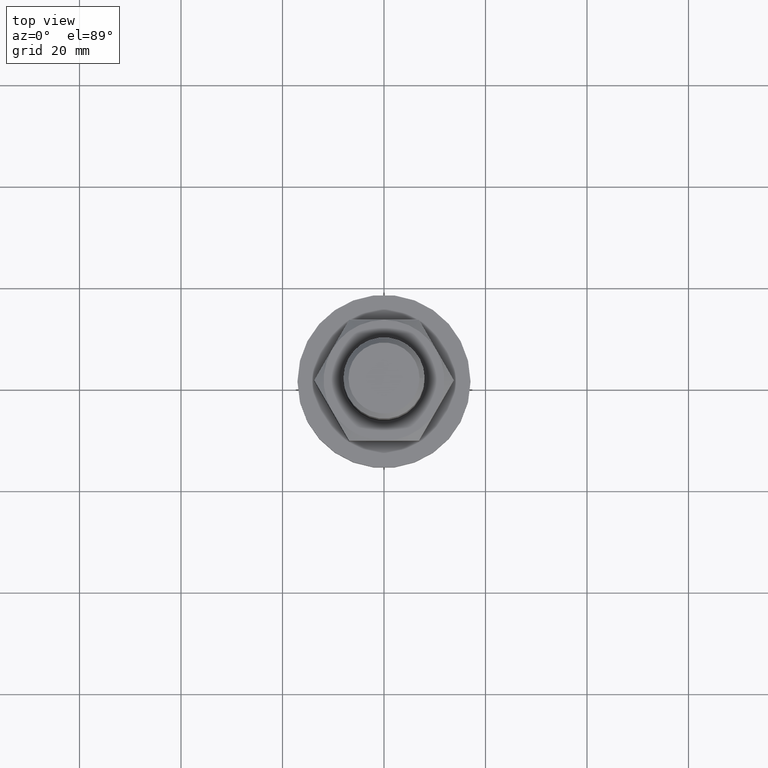
[diagram: clean part render]
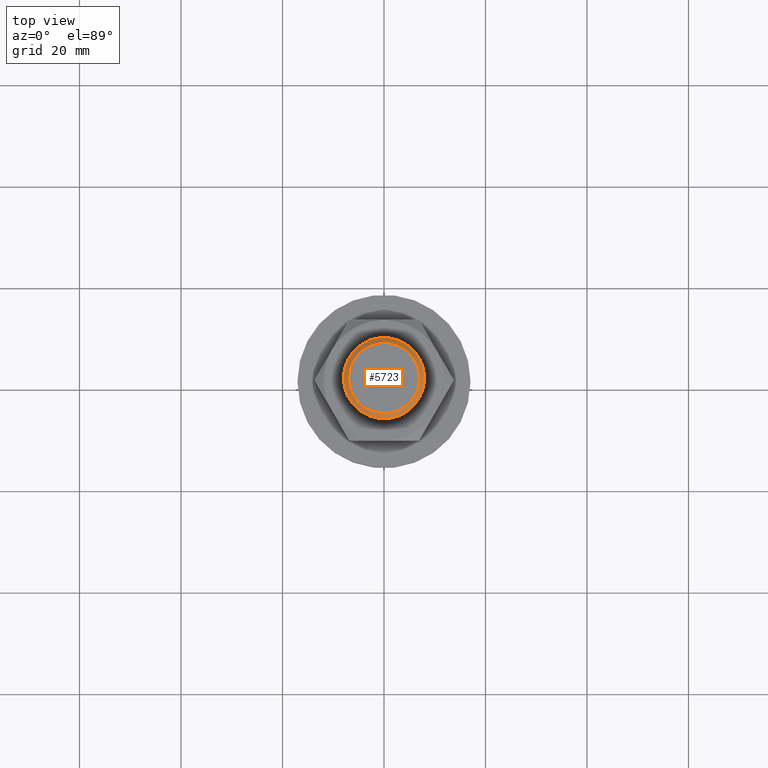
[diagram: same view with one face highlighted and labeled with its STEP entity id]
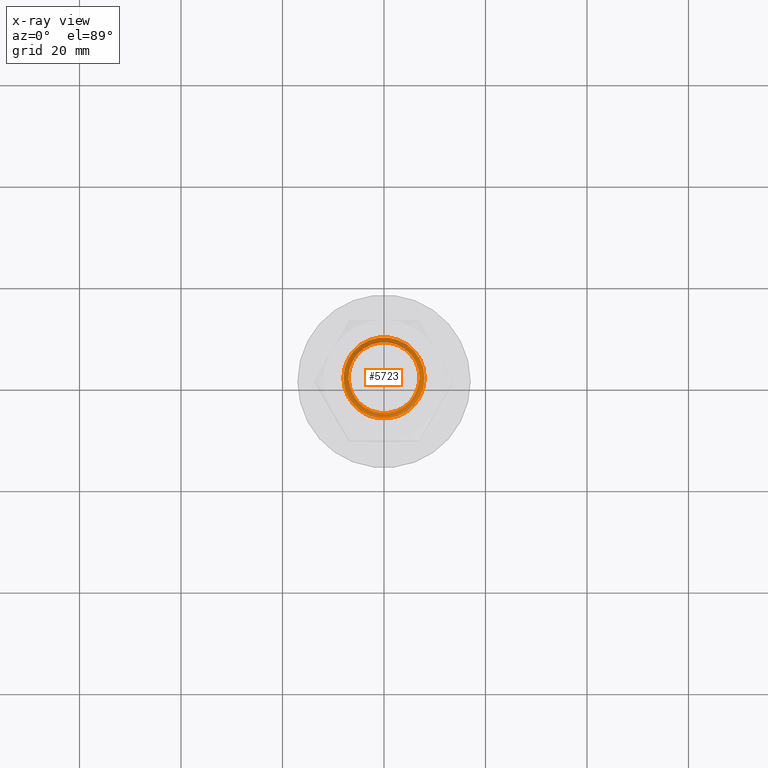
[diagram: x-ray of the same camera — body ghosted, the highlighted face saturated]
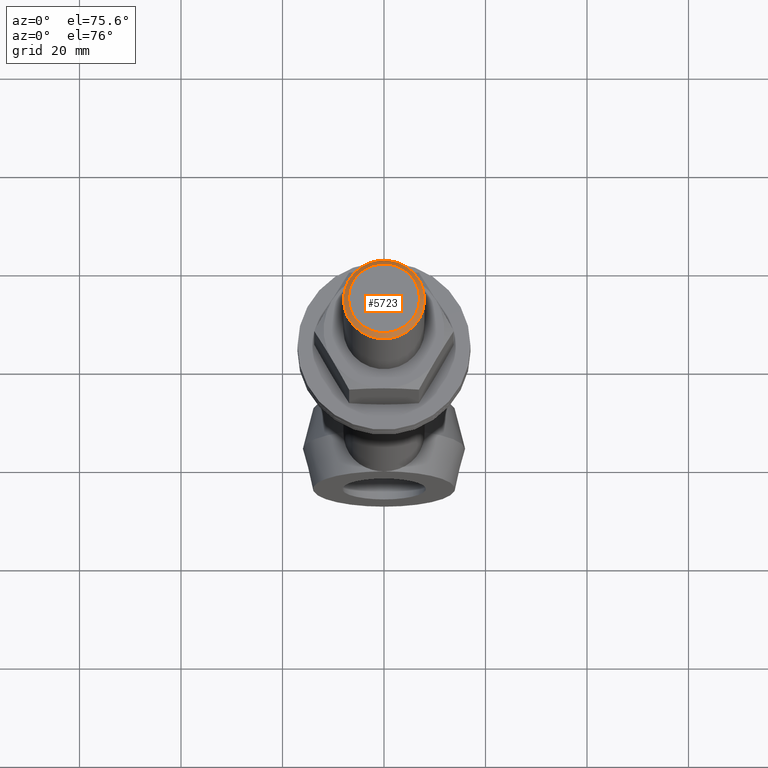
[diagram: same view with one face highlighted and labeled with its STEP entity id]
A machine part, top view. The second image highlights one B-rep face of the part: STEP entity #5723.
The next image is the same camera in x-ray: the body ghosted, the highlighted face saturated — about 0% of this face is hidden behind the body in this view.
A second angle (auxiliary view) of the same face is appended — the face is thin or edge-on in the first view.
In plain terms, the highlighted conical surface has half-angle 45 deg.
Its self-contained STEP definition (entity closure, byte-faithful):
#15 = CONICAL_SURFACE ( 'NONE', #4840, 7.000000000000006217, 0.7853981633974447263 ) ;
#312 = CARTESIAN_POINT ( 'NONE',  ( 3.769746804327677471E-15, 0.000000000000000000, 60.00000000000000000 ) ) ;
#400 = AXIS2_PLACEMENT_3D ( 'NONE', #807, #3700, #2271 ) ;
#619 = EDGE_LOOP ( 'NONE', ( #4976 ) ) ;
#807 = CARTESIAN_POINT ( 'NONE',  ( 3.769746804327677471E-15, 0.000000000000000000, 60.00000000000000000 ) ) ;
#922 = ORIENTED_EDGE ( 'NONE', *, *, #4852, .F. ) ;
#1557 = VERTEX_POINT ( 'NONE', #2238 ) ;
#1659 = CARTESIAN_POINT ( 'NONE',  ( 3.769746804327677471E-15, 0.000000000000000000, 59.00000000000000000 ) ) ;
#2238 = CARTESIAN_POINT ( 'NONE',  ( 8.000000000000003553, 0.000000000000000000, 59.00000000000000000 ) ) ;
#2271 = DIRECTION ( 'NONE',  ( 1.000000000000000000, 0.000000000000000000, 0.000000000000000000 ) ) ;
#2864 = EDGE_CURVE ( 'NONE', #1557, #1557, #4678, .T. ) ;
#2983 = EDGE_LOOP ( 'NONE', ( #922 ) ) ;
#3112 = DIRECTION ( 'NONE',  ( 0.000000000000000000, 0.000000000000000000, -1.000000000000000000 ) ) ;
#3113 = FACE_BOUND ( 'NONE', #2983, .T. ) ;
#3556 = DIRECTION ( 'NONE',  ( -1.000000000000000000, 0.000000000000000000, 0.000000000000000000 ) ) ;
#3632 = VERTEX_POINT ( 'NONE', #6030 ) ;
#3700 = DIRECTION ( 'NONE',  ( 0.000000000000000000, 0.000000000000000000, 1.000000000000000000 ) ) ;
#4498 = AXIS2_PLACEMENT_3D ( 'NONE', #1659, #4517, #5487 ) ;
#4517 = DIRECTION ( 'NONE',  ( 0.000000000000000000, 0.000000000000000000, -1.000000000000000000 ) ) ;
#4664 = CIRCLE ( 'NONE', #400, 7.000000000000006217 ) ;
#4678 = CIRCLE ( 'NONE', #4498, 8.000000000000000000 ) ;
#4840 = AXIS2_PLACEMENT_3D ( 'NONE', #312, #3112, #3556 ) ;
#4852 = EDGE_CURVE ( 'NONE', #3632, #3632, #4664, .T. ) ;
#4976 = ORIENTED_EDGE ( 'NONE', *, *, #2864, .F. ) ;
#5487 = DIRECTION ( 'NONE',  ( 1.000000000000000000, 0.000000000000000000, 0.000000000000000000 ) ) ;
#5649 = FACE_OUTER_BOUND ( 'NONE', #619, .T. ) ;
#5723 = ADVANCED_FACE ( 'NONE', ( #5649, #3113 ), #15, .T. ) ;
#6030 = CARTESIAN_POINT ( 'NONE',  ( 7.000000000000009770, 0.000000000000000000, 60.00000000000000000 ) ) ;